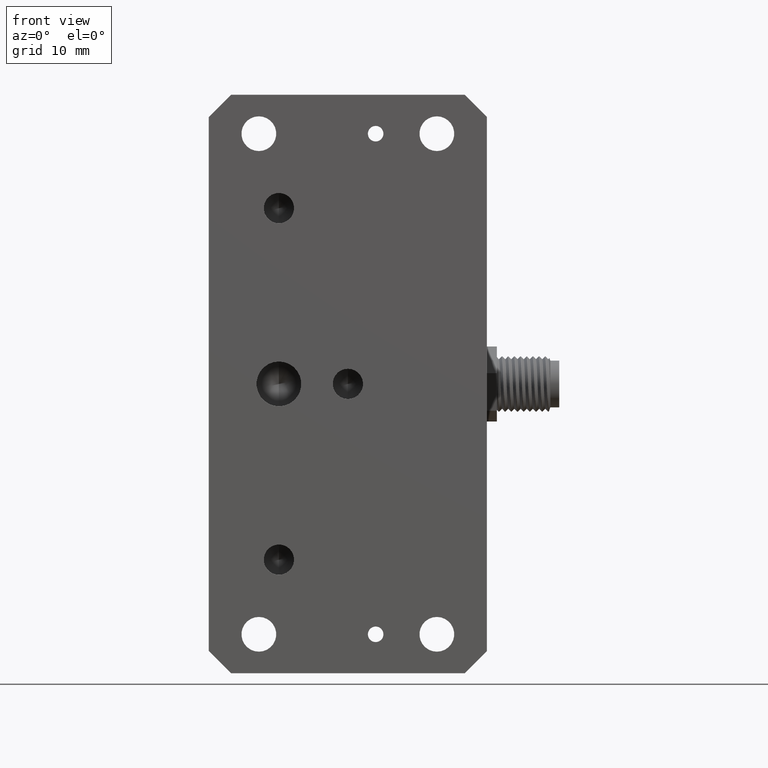
[diagram: clean part render]
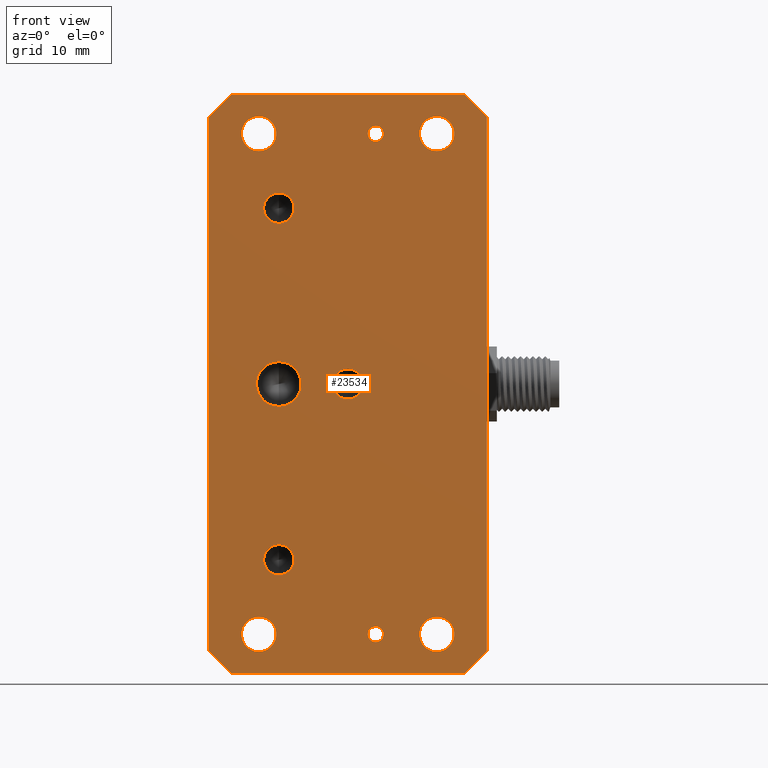
[diagram: same view with one face highlighted and labeled with its STEP entity id]
A machine part, front view. The second image highlights one B-rep face of the part: STEP entity #23534.
In plain terms, the highlighted planar face has unit normal (0, 1, 0).
Its self-contained STEP definition (entity closure, byte-faithful):
#5880 = DIRECTION ( 'NONE',  ( 0.0000000000000000000, 0.0000000000000000000, -1.000000000000000000 ) ) ;
#6147 = DIRECTION ( 'NONE',  ( -0.0000000000000000000, -1.000000000000000000, -0.0000000000000000000 ) ) ;
#6152 = AXIS2_PLACEMENT_3D ( 'NONE', #6153, #6147, #5880 ) ;
#6153 = CARTESIAN_POINT ( 'NONE',  ( -7.874000000000000600, -1.866361721900564100E-017, -6.938893903907228400E-015 ) ) ;
#6162 = CIRCLE ( 'NONE', #6152, 2.552699999999998000 ) ;
#6302 = CARTESIAN_POINT ( 'NONE',  ( -7.874000000000000600, -1.866361721900564100E-017, 2.552699999999990900 ) ) ;
#6333 = CARTESIAN_POINT ( 'NONE',  ( -7.874000000000000600, -1.343780439768404900E-015, -18.33880000000001700 ) ) ;
#6337 = CARTESIAN_POINT ( 'NONE',  ( -7.874000000000000600, -1.343780439768404900E-015, 21.79319999999998500 ) ) ;
#6343 = CARTESIAN_POINT ( 'NONE',  ( -7.874000000000000600, -1.343780439768404900E-015, 18.33880000000000300 ) ) ;
#6366 = CARTESIAN_POINT ( 'NONE',  ( -7.874000000000000600, -1.866361721900564100E-017, -2.552700000000005100 ) ) ;
#6397 = DIRECTION ( 'NONE',  ( 0.0000000000000000000, 0.0000000000000000000, 1.000000000000000000 ) ) ;
#6673 = AXIS2_PLACEMENT_3D ( 'NONE', #6711, #6777, #6776 ) ;
#6675 = CIRCLE ( 'NONE', #6785, 1.727199999999991200 ) ;
#6711 = CARTESIAN_POINT ( 'NONE',  ( -7.874000000000000600, -1.343780439768404900E-015, -20.06600000000000600 ) ) ;
#6712 = CARTESIAN_POINT ( 'NONE',  ( -7.874000000000000600, -1.343780439768404900E-015, -21.79319999999999900 ) ) ;
#6714 = CIRCLE ( 'NONE', #6673, 1.727199999999991200 ) ;
#6755 = DIRECTION ( 'NONE',  ( 0.0000000000000000000, 0.0000000000000000000, -1.000000000000000000 ) ) ;
#6757 = DIRECTION ( 'NONE',  ( -0.0000000000000000000, -1.000000000000000000, -0.0000000000000000000 ) ) ;
#6774 = CARTESIAN_POINT ( 'NONE',  ( -7.874000000000000600, -1.343780439768404900E-015, 20.06599999999999200 ) ) ;
#6776 = DIRECTION ( 'NONE',  ( 0.0000000000000000000, 0.0000000000000000000, -1.000000000000000000 ) ) ;
#6777 = DIRECTION ( 'NONE',  ( -0.0000000000000000000, -1.000000000000000000, -0.0000000000000000000 ) ) ;
#6785 = AXIS2_PLACEMENT_3D ( 'NONE', #6774, #6757, #6755 ) ;
#6861 = CARTESIAN_POINT ( 'NONE',  ( 10.16000000000000000, 0.0000000000000000000, -26.59062499999999900 ) ) ;
#6976 = DIRECTION ( 'NONE',  ( 0.0000000000000000000, 0.0000000000000000000, -1.000000000000000000 ) ) ;
#6977 = DIRECTION ( 'NONE',  ( -0.0000000000000000000, -1.000000000000000000, -0.0000000000000000000 ) ) ;
#6978 = CARTESIAN_POINT ( 'NONE',  ( 0.0000000000000000000, 1.385727811794799700E-016, 0.0000000000000000000 ) ) ;
#6980 = AXIS2_PLACEMENT_3D ( 'NONE', #6978, #6977, #6976 ) ;
#6992 = CARTESIAN_POINT ( 'NONE',  ( 0.0000000000000000000, 1.385727811794799700E-016, -1.727199999999999400 ) ) ;
#6998 = CIRCLE ( 'NONE', #6980, 1.727199999999999400 ) ;
#7023 = CARTESIAN_POINT ( 'NONE',  ( 2.115209951487307500E-016, 1.385727811794799700E-016, 1.727199999999999400 ) ) ;
#7782 = CIRCLE ( 'NONE', #7888, 1.984375000000003600 ) ;
#7843 = DIRECTION ( 'NONE',  ( 0.0000000000000000000, 1.000000000000000000, 0.0000000000000000000 ) ) ;
#7845 = CARTESIAN_POINT ( 'NONE',  ( 3.175000000000000700, 0.0000000000000000000, -28.57500000000000300 ) ) ;
#7848 = AXIS2_PLACEMENT_3D ( 'NONE', #7845, #7843, #7890 ) ;
#7850 = CIRCLE ( 'NONE', #7848, 0.8889999999999940200 ) ;
#7886 = DIRECTION ( 'NONE',  ( 0.0000000000000000000, 1.000000000000000000, 0.0000000000000000000 ) ) ;
#7887 = CARTESIAN_POINT ( 'NONE',  ( 10.16000000000000000, 0.0000000000000000000, -28.57500000000000300 ) ) ;
#7888 = AXIS2_PLACEMENT_3D ( 'NONE', #7887, #7886, #6397 ) ;
#7890 = DIRECTION ( 'NONE',  ( 0.0000000000000000000, 0.0000000000000000000, 1.000000000000000000 ) ) ;
#8275 = CARTESIAN_POINT ( 'NONE',  ( 3.175000000000007800, 0.0000000000000000000, 29.46399999999999900 ) ) ;
#8283 = CARTESIAN_POINT ( 'NONE',  ( 3.175000000000007800, 0.0000000000000000000, 27.68600000000001100 ) ) ;
#8709 = CARTESIAN_POINT ( 'NONE',  ( 10.16000000000000000, 0.0000000000000000000, -30.55937500000000600 ) ) ;
#8837 = CARTESIAN_POINT ( 'NONE',  ( 3.175000000000000700, 0.0000000000000000000, -27.68600000000001100 ) ) ;
#8863 = CIRCLE ( 'NONE', #8887, 0.8889999999999940200 ) ;
#8881 = DIRECTION ( 'NONE',  ( 0.0000000000000000000, 0.0000000000000000000, 1.000000000000000000 ) ) ;
#8883 = DIRECTION ( 'NONE',  ( 0.0000000000000000000, 1.000000000000000000, 0.0000000000000000000 ) ) ;
#8884 = CARTESIAN_POINT ( 'NONE',  ( 3.175000000000007800, 0.0000000000000000000, 28.57500000000000300 ) ) ;
#8887 = AXIS2_PLACEMENT_3D ( 'NONE', #8884, #8883, #8881 ) ;
#8894 = CARTESIAN_POINT ( 'NONE',  ( 10.16000000000000000, 0.0000000000000000000, 26.59062499999999900 ) ) ;
#8922 = CARTESIAN_POINT ( 'NONE',  ( 3.175000000000000700, 0.0000000000000000000, -29.46399999999999900 ) ) ;
#8970 = CARTESIAN_POINT ( 'NONE',  ( 10.16000000000000000, 0.0000000000000000000, 28.57500000000000300 ) ) ;
#8973 = CIRCLE ( 'NONE', #8987, 1.984375000000003600 ) ;
#8987 = AXIS2_PLACEMENT_3D ( 'NONE', #8970, #9085, #9067 ) ;
#9063 = DIRECTION ( 'NONE',  ( -0.0000000000000000000, -1.000000000000000000, -0.0000000000000000000 ) ) ;
#9065 = CIRCLE ( 'NONE', #9212, 1.984375000000003600 ) ;
#9067 = DIRECTION ( 'NONE',  ( 0.0000000000000000000, 0.0000000000000000000, 1.000000000000000000 ) ) ;
#9085 = DIRECTION ( 'NONE',  ( -0.0000000000000000000, -1.000000000000000000, -0.0000000000000000000 ) ) ;
#9176 = DIRECTION ( 'NONE',  ( 0.0000000000000000000, 0.0000000000000000000, 1.000000000000000000 ) ) ;
#9177 = DIRECTION ( 'NONE',  ( 0.0000000000000000000, 1.000000000000000000, 0.0000000000000000000 ) ) ;
#9180 = CARTESIAN_POINT ( 'NONE',  ( -10.16000000000000000, 0.0000000000000000000, -28.57500000000000300 ) ) ;
#9185 = CARTESIAN_POINT ( 'NONE',  ( 15.87500000000000000, 0.0000000000000000000, -33.02000000000000300 ) ) ;
#9194 = CARTESIAN_POINT ( 'NONE',  ( -10.16000000000000000, 0.0000000000000000000, -26.59062499999999900 ) ) ;
#9212 = AXIS2_PLACEMENT_3D ( 'NONE', #9180, #9177, #9176 ) ;
#9214 = DIRECTION ( 'NONE',  ( 0.0000000000000000000, 0.0000000000000000000, 1.000000000000000000 ) ) ;
#9226 = CARTESIAN_POINT ( 'NONE',  ( 10.16000000000000000, 0.0000000000000000000, 30.55937500000000600 ) ) ;
#9240 = CARTESIAN_POINT ( 'NONE',  ( -10.16000000000000000, 0.0000000000000000000, 28.57500000000000300 ) ) ;
#9244 = AXIS2_PLACEMENT_3D ( 'NONE', #9240, #9063, #9214 ) ;
#9247 = CIRCLE ( 'NONE', #9244, 1.984375000000003600 ) ;
#9260 = DIRECTION ( 'NONE',  ( -5.253553833969736500E-017, -0.0000000000000000000, -1.000000000000000000 ) ) ;
#9261 = VECTOR ( 'NONE', #9260, 1000.000000000000000 ) ;
#9264 = CARTESIAN_POINT ( 'NONE',  ( -10.16000000000000000, 0.0000000000000000000, -30.55937500000000600 ) ) ;
#9266 = LINE ( 'NONE', #9185, #9261 ) ;
#9387 = CARTESIAN_POINT ( 'NONE',  ( -10.16000000000000000, 0.0000000000000000000, 26.59062499999999900 ) ) ;
#9392 = CARTESIAN_POINT ( 'NONE',  ( -10.16000000000000000, 0.0000000000000000000, 30.55937500000000600 ) ) ;
#9477 = CARTESIAN_POINT ( 'NONE',  ( 15.87500000000000400, 0.0000000000000000000, 30.48000000000000000 ) ) ;
#9479 = LINE ( 'NONE', #9477, #9749 ) ;
#9534 = FACE_BOUND ( 'NONE', #23580, .T. ) ;
#9535 = FACE_OUTER_BOUND ( 'NONE', #23577, .T. ) ;
#9537 = PLANE ( 'NONE',  #9605 ) ;
#9567 = DIRECTION ( 'NONE',  ( -0.0000000000000000000, -1.000000000000000000, -0.0000000000000000000 ) ) ;
#9570 = FACE_BOUND ( 'NONE', #23614, .T. ) ;
#9571 = FACE_BOUND ( 'NONE', #23630, .T. ) ;
#9572 = FACE_BOUND ( 'NONE', #23576, .T. ) ;
#9573 = FACE_BOUND ( 'NONE', #23597, .T. ) ;
#9574 = FACE_BOUND ( 'NONE', #23593, .T. ) ;
#9575 = FACE_BOUND ( 'NONE', #23594, .T. ) ;
#9576 = FACE_BOUND ( 'NONE', #23537, .T. ) ;
#9578 = FACE_BOUND ( 'NONE', #23541, .T. ) ;
#9582 = FACE_BOUND ( 'NONE', #23535, .T. ) ;
#9592 = DIRECTION ( 'NONE',  ( 0.0000000000000000000, 0.0000000000000000000, -1.000000000000000000 ) ) ;
#9593 = AXIS2_PLACEMENT_3D ( 'NONE', #9606, #9567, #9592 ) ;
#9594 = CIRCLE ( 'NONE', #9593, 1.727199999999991200 ) ;
#9598 = DIRECTION ( 'NONE',  ( 0.0000000000000000000, 0.0000000000000000000, -1.000000000000000000 ) ) ;
#9599 = DIRECTION ( 'NONE',  ( -0.0000000000000000000, -1.000000000000000000, -0.0000000000000000000 ) ) ;
#9600 = CARTESIAN_POINT ( 'NONE',  ( -7.874000000000000600, -1.866361721900564100E-017, -6.938893903907228400E-015 ) ) ;
#9601 = AXIS2_PLACEMENT_3D ( 'NONE', #9600, #9599, #9598 ) ;
#9602 = DIRECTION ( 'NONE',  ( 0.0000000000000000000, -0.0000000000000000000, 1.000000000000000000 ) ) ;
#9603 = DIRECTION ( 'NONE',  ( 0.0000000000000000000, 1.000000000000000000, 0.0000000000000000000 ) ) ;
#9604 = CARTESIAN_POINT ( 'NONE',  ( -15.87500000000000000, 0.0000000000000000000, 33.02000000000000300 ) ) ;
#9605 = AXIS2_PLACEMENT_3D ( 'NONE', #9604, #9603, #9602 ) ;
#9606 = CARTESIAN_POINT ( 'NONE',  ( -7.874000000000000600, -1.343780439768404900E-015, 20.06599999999999200 ) ) ;
#9608 = CIRCLE ( 'NONE', #9601, 2.552699999999998000 ) ;
#9625 = CARTESIAN_POINT ( 'NONE',  ( -15.87500000000000000, 0.0000000000000000000, 30.47999999999998600 ) ) ;
#9643 = DIRECTION ( 'NONE',  ( -0.0000000000000000000, -1.000000000000000000, -0.0000000000000000000 ) ) ;
#9644 = DIRECTION ( 'NONE',  ( 0.0000000000000000000, 0.0000000000000000000, 1.000000000000000000 ) ) ;
#9645 = DIRECTION ( 'NONE',  ( 0.0000000000000000000, 1.000000000000000000, 0.0000000000000000000 ) ) ;
#9646 = CARTESIAN_POINT ( 'NONE',  ( -10.16000000000000000, 0.0000000000000000000, -28.57500000000000300 ) ) ;
#9647 = AXIS2_PLACEMENT_3D ( 'NONE', #9646, #9645, #9644 ) ;
#9648 = CIRCLE ( 'NONE', #9703, 1.984375000000003600 ) ;
#9649 = CIRCLE ( 'NONE', #9647, 1.984375000000003600 ) ;
#9650 = DIRECTION ( 'NONE',  ( -1.000000000000000000, -0.0000000000000000000, -0.0000000000000000000 ) ) ;
#9651 = VECTOR ( 'NONE', #9650, 1000.000000000000000 ) ;
#9652 = CARTESIAN_POINT ( 'NONE',  ( -15.87500000000000000, 0.0000000000000000000, -33.02000000000000300 ) ) ;
#9653 = LINE ( 'NONE', #9652, #9651 ) ;
#9654 = CARTESIAN_POINT ( 'NONE',  ( 15.87500000000000000, 0.0000000000000000000, -30.47999999999998600 ) ) ;
#9655 = DIRECTION ( 'NONE',  ( 0.7071067811865484600, -0.0000000000000000000, -0.7071067811865465700 ) ) ;
#9656 = VECTOR ( 'NONE', #9655, 1000.000000000000000 ) ;
#9657 = CARTESIAN_POINT ( 'NONE',  ( -15.87500000000000000, 0.0000000000000000000, -30.48000000000000000 ) ) ;
#9658 = CIRCLE ( 'NONE', #9702, 1.984375000000003600 ) ;
#9659 = CARTESIAN_POINT ( 'NONE',  ( 10.16000000000000000, 0.0000000000000000000, 28.57500000000000300 ) ) ;
#9660 = LINE ( 'NONE', #9657, #9656 ) ;
#9661 = CARTESIAN_POINT ( 'NONE',  ( -13.33499999999999200, 0.0000000000000000000, -33.02000000000000300 ) ) ;
#9662 = CIRCLE ( 'NONE', #9679, 0.8889999999999940200 ) ;
#9663 = CARTESIAN_POINT ( 'NONE',  ( 15.87500000000000000, 0.0000000000000000000, 30.48000000000001100 ) ) ;
#9668 = CARTESIAN_POINT ( 'NONE',  ( 13.33499999999998500, 0.0000000000000000000, -33.02000000000001000 ) ) ;
#9669 = CARTESIAN_POINT ( 'NONE',  ( -15.87500000000000000, 0.0000000000000000000, -30.48000000000000000 ) ) ;
#9676 = CIRCLE ( 'NONE', #9695, 1.727199999999999400 ) ;
#9677 = DIRECTION ( 'NONE',  ( 0.0000000000000000000, 0.0000000000000000000, 1.000000000000000000 ) ) ;
#9678 = DIRECTION ( 'NONE',  ( 0.0000000000000000000, 1.000000000000000000, 0.0000000000000000000 ) ) ;
#9679 = AXIS2_PLACEMENT_3D ( 'NONE', #9684, #9678, #9677 ) ;
#9681 = DIRECTION ( 'NONE',  ( 0.0000000000000000000, 0.0000000000000000000, 1.000000000000000000 ) ) ;
#9682 = DIRECTION ( 'NONE',  ( 0.0000000000000000000, 1.000000000000000000, 0.0000000000000000000 ) ) ;
#9683 = CARTESIAN_POINT ( 'NONE',  ( 3.175000000000007800, 0.0000000000000000000, 28.57500000000000300 ) ) ;
#9684 = CARTESIAN_POINT ( 'NONE',  ( 3.175000000000000700, 0.0000000000000000000, -28.57500000000000300 ) ) ;
#9685 = DIRECTION ( 'NONE',  ( 0.0000000000000000000, 0.0000000000000000000, -1.000000000000000000 ) ) ;
#9686 = DIRECTION ( 'NONE',  ( -0.0000000000000000000, -1.000000000000000000, -0.0000000000000000000 ) ) ;
#9687 = AXIS2_PLACEMENT_3D ( 'NONE', #9683, #9682, #9681 ) ;
#9688 = CIRCLE ( 'NONE', #9687, 0.8889999999999940200 ) ;
#9690 = DIRECTION ( 'NONE',  ( 0.0000000000000000000, 0.0000000000000000000, -1.000000000000000000 ) ) ;
#9691 = DIRECTION ( 'NONE',  ( -0.0000000000000000000, -1.000000000000000000, -0.0000000000000000000 ) ) ;
#9692 = CARTESIAN_POINT ( 'NONE',  ( -7.874000000000000600, -1.343780439768404900E-015, -20.06600000000000600 ) ) ;
#9693 = AXIS2_PLACEMENT_3D ( 'NONE', #9692, #9691, #9690 ) ;
#9695 = AXIS2_PLACEMENT_3D ( 'NONE', #9700, #9686, #9685 ) ;
#9696 = DIRECTION ( 'NONE',  ( 0.0000000000000000000, 0.0000000000000000000, 1.000000000000000000 ) ) ;
#9697 = DIRECTION ( 'NONE',  ( -0.0000000000000000000, -1.000000000000000000, -0.0000000000000000000 ) ) ;
#9698 = CARTESIAN_POINT ( 'NONE',  ( -10.16000000000000000, 0.0000000000000000000, 28.57500000000000300 ) ) ;
#9699 = CIRCLE ( 'NONE', #9693, 1.727199999999991200 ) ;
#9700 = CARTESIAN_POINT ( 'NONE',  ( 0.0000000000000000000, 1.385727811794799700E-016, 0.0000000000000000000 ) ) ;
#9701 = DIRECTION ( 'NONE',  ( 0.0000000000000000000, 0.0000000000000000000, 1.000000000000000000 ) ) ;
#9702 = AXIS2_PLACEMENT_3D ( 'NONE', #9659, #9643, #9701 ) ;
#9703 = AXIS2_PLACEMENT_3D ( 'NONE', #9698, #9697, #9696 ) ;
#9704 = CARTESIAN_POINT ( 'NONE',  ( 13.33499999999999600, 0.0000000000000000000, 33.02000000000000300 ) ) ;
#9705 = DIRECTION ( 'NONE',  ( 0.0000000000000000000, 0.0000000000000000000, 1.000000000000000000 ) ) ;
#9706 = DIRECTION ( 'NONE',  ( 0.0000000000000000000, 1.000000000000000000, 0.0000000000000000000 ) ) ;
#9707 = CARTESIAN_POINT ( 'NONE',  ( 10.16000000000000000, 0.0000000000000000000, -28.57500000000000300 ) ) ;
#9712 = DIRECTION ( 'NONE',  ( -0.7071067811865455700, 0.0000000000000000000, -0.7071067811865494600 ) ) ;
#9713 = VECTOR ( 'NONE', #9712, 1000.000000000000200 ) ;
#9714 = CARTESIAN_POINT ( 'NONE',  ( -13.33499999999999900, 0.0000000000000000000, 33.02000000000000300 ) ) ;
#9715 = LINE ( 'NONE', #9714, #9713 ) ;
#9721 = DIRECTION ( 'NONE',  ( -0.7071067811865484600, -0.0000000000000000000, 0.7071067811865465700 ) ) ;
#9727 = AXIS2_PLACEMENT_3D ( 'NONE', #9707, #9706, #9705 ) ;
#9728 = CIRCLE ( 'NONE', #9727, 1.984375000000003600 ) ;
#9739 = DIRECTION ( 'NONE',  ( 0.7071067811865455700, -0.0000000000000000000, 0.7071067811865494600 ) ) ;
#9740 = VECTOR ( 'NONE', #9739, 1000.000000000000200 ) ;
#9741 = CARTESIAN_POINT ( 'NONE',  ( 13.33499999999999900, 0.0000000000000000000, -33.02000000000000300 ) ) ;
#9742 = LINE ( 'NONE', #9741, #9740 ) ;
#9743 = CARTESIAN_POINT ( 'NONE',  ( -13.33499999999999900, 0.0000000000000000000, 33.02000000000000300 ) ) ;
#9749 = VECTOR ( 'NONE', #9721, 1000.000000000000000 ) ;
#9799 = DIRECTION ( 'NONE',  ( 1.000000000000000000, 0.0000000000000000000, 0.0000000000000000000 ) ) ;
#9801 = VECTOR ( 'NONE', #9799, 1000.000000000000000 ) ;
#9802 = CARTESIAN_POINT ( 'NONE',  ( -15.87500000000000000, 0.0000000000000000000, 33.02000000000000300 ) ) ;
#9804 = LINE ( 'NONE', #9802, #9801 ) ;
#9843 = DIRECTION ( 'NONE',  ( 0.0000000000000000000, 0.0000000000000000000, 1.000000000000000000 ) ) ;
#9844 = VECTOR ( 'NONE', #9843, 1000.000000000000000 ) ;
#9846 = CARTESIAN_POINT ( 'NONE',  ( -15.87500000000000000, 0.0000000000000000000, -33.02000000000000300 ) ) ;
#9847 = LINE ( 'NONE', #9846, #9844 ) ;
#23081 = VERTEX_POINT ( 'NONE', #6302 ) ;
#23108 = VERTEX_POINT ( 'NONE', #6343 ) ;
#23110 = VERTEX_POINT ( 'NONE', #6337 ) ;
#23112 = VERTEX_POINT ( 'NONE', #6333 ) ;
#23118 = VERTEX_POINT ( 'NONE', #6366 ) ;
#23121 = EDGE_CURVE ( 'NONE', #23081, #23118, #6162, .T. ) ;
#23158 = VERTEX_POINT ( 'NONE', #6712 ) ;
#23159 = EDGE_CURVE ( 'NONE', #23112, #23158, #6714, .T. ) ;
#23163 = EDGE_CURVE ( 'NONE', #23110, #23108, #6675, .T. ) ;
#23197 = VERTEX_POINT ( 'NONE', #7023 ) ;
#23199 = VERTEX_POINT ( 'NONE', #6992 ) ;
#23200 = EDGE_CURVE ( 'NONE', #23197, #23199, #6998, .T. ) ;
#23361 = VERTEX_POINT ( 'NONE', #8283 ) ;
#23362 = VERTEX_POINT ( 'NONE', #8275 ) ;
#23386 = EDGE_CURVE ( 'NONE', #23411, #23412, #7850, .T. ) ;
#23389 = EDGE_CURVE ( 'NONE', #23390, #23455, #7782, .T. ) ;
#23390 = VERTEX_POINT ( 'NONE', #8709 ) ;
#23411 = VERTEX_POINT ( 'NONE', #8922 ) ;
#23412 = VERTEX_POINT ( 'NONE', #8837 ) ;
#23419 = EDGE_CURVE ( 'NONE', #23361, #23362, #8863, .T. ) ;
#23424 = VERTEX_POINT ( 'NONE', #8894 ) ;
#23431 = EDGE_CURVE ( 'NONE', #23439, #23424, #8973, .T. ) ;
#23437 = EDGE_CURVE ( 'NONE', #23484, #23485, #9247, .T. ) ;
#23439 = VERTEX_POINT ( 'NONE', #9226 ) ;
#23440 = EDGE_CURVE ( 'NONE', #23454, #23442, #9065, .T. ) ;
#23442 = VERTEX_POINT ( 'NONE', #9194 ) ;
#23454 = VERTEX_POINT ( 'NONE', #9264 ) ;
#23455 = VERTEX_POINT ( 'NONE', #6861 ) ;
#23484 = VERTEX_POINT ( 'NONE', #9392 ) ;
#23485 = VERTEX_POINT ( 'NONE', #9387 ) ;
#23498 = ORIENTED_EDGE ( 'NONE', *, *, #23540, .F. ) ;
#23500 = ORIENTED_EDGE ( 'NONE', *, *, #23538, .F. ) ;
#23534 = ADVANCED_FACE ( 'NONE', ( #9582, #9578, #9576, #9575, #9574, #9573, #9572, #9534, #9571, #9535, #9570 ), #9537, .F. ) ;
#23535 = EDGE_LOOP ( 'NONE', ( #23500, #23536 ) ) ;
#23536 = ORIENTED_EDGE ( 'NONE', *, *, #23121, .F. ) ;
#23537 = EDGE_LOOP ( 'NONE', ( #23539, #23590 ) ) ;
#23538 = EDGE_CURVE ( 'NONE', #23118, #23081, #9608, .T. ) ;
#23539 = ORIENTED_EDGE ( 'NONE', *, *, #23591, .F. ) ;
#23540 = EDGE_CURVE ( 'NONE', #23108, #23110, #9594, .T. ) ;
#23541 = EDGE_LOOP ( 'NONE', ( #23498, #23542 ) ) ;
#23542 = ORIENTED_EDGE ( 'NONE', *, *, #23163, .F. ) ;
#23555 = VERTEX_POINT ( 'NONE', #9625 ) ;
#23567 = ORIENTED_EDGE ( 'NONE', *, *, #23632, .F. ) ;
#23568 = VERTEX_POINT ( 'NONE', #9663 ) ;
#23569 = VERTEX_POINT ( 'NONE', #9669 ) ;
#23570 = VERTEX_POINT ( 'NONE', #9668 ) ;
#23571 = EDGE_CURVE ( 'NONE', #23569, #23575, #9660, .T. ) ;
#23573 = ORIENTED_EDGE ( 'NONE', *, *, #23571, .T. ) ;
#23574 = EDGE_CURVE ( 'NONE', #23570, #23575, #9653, .T. ) ;
#23575 = VERTEX_POINT ( 'NONE', #9661 ) ;
#23576 = EDGE_LOOP ( 'NONE', ( #23583, #23582 ) ) ;
#23577 = EDGE_LOOP ( 'NONE', ( #23567, #23573, #23619, #23634, #23625, #23618, #23624, #23613 ) ) ;
#23578 = ORIENTED_EDGE ( 'NONE', *, *, #23600, .T. ) ;
#23579 = ORIENTED_EDGE ( 'NONE', *, *, #23386, .T. ) ;
#23580 = EDGE_LOOP ( 'NONE', ( #23588, #23584 ) ) ;
#23581 = EDGE_CURVE ( 'NONE', #23442, #23454, #9649, .T. ) ;
#23582 = ORIENTED_EDGE ( 'NONE', *, *, #23440, .T. ) ;
#23583 = ORIENTED_EDGE ( 'NONE', *, *, #23581, .T. ) ;
#23584 = ORIENTED_EDGE ( 'NONE', *, *, #23585, .F. ) ;
#23585 = EDGE_CURVE ( 'NONE', #23424, #23439, #9658, .T. ) ;
#23586 = VERTEX_POINT ( 'NONE', #9654 ) ;
#23587 = EDGE_CURVE ( 'NONE', #23485, #23484, #9648, .T. ) ;
#23588 = ORIENTED_EDGE ( 'NONE', *, *, #23431, .F. ) ;
#23589 = ORIENTED_EDGE ( 'NONE', *, *, #23592, .F. ) ;
#23590 = ORIENTED_EDGE ( 'NONE', *, *, #23159, .F. ) ;
#23591 = EDGE_CURVE ( 'NONE', #23158, #23112, #9699, .T. ) ;
#23592 = EDGE_CURVE ( 'NONE', #23199, #23197, #9676, .T. ) ;
#23593 = EDGE_LOOP ( 'NONE', ( #23598, #23595 ) ) ;
#23594 = EDGE_LOOP ( 'NONE', ( #23589, #23596 ) ) ;
#23595 = ORIENTED_EDGE ( 'NONE', *, *, #23419, .T. ) ;
#23596 = ORIENTED_EDGE ( 'NONE', *, *, #23200, .F. ) ;
#23597 = EDGE_LOOP ( 'NONE', ( #23578, #23579 ) ) ;
#23598 = ORIENTED_EDGE ( 'NONE', *, *, #23599, .T. ) ;
#23599 = EDGE_CURVE ( 'NONE', #23362, #23361, #9688, .T. ) ;
#23600 = EDGE_CURVE ( 'NONE', #23412, #23411, #9662, .T. ) ;
#23611 = EDGE_CURVE ( 'NONE', #23621, #23555, #9715, .T. ) ;
#23612 = EDGE_CURVE ( 'NONE', #23455, #23390, #9728, .T. ) ;
#23613 = ORIENTED_EDGE ( 'NONE', *, *, #23611, .T. ) ;
#23614 = EDGE_LOOP ( 'NONE', ( #23615, #23616 ) ) ;
#23615 = ORIENTED_EDGE ( 'NONE', *, *, #23612, .T. ) ;
#23616 = ORIENTED_EDGE ( 'NONE', *, *, #23389, .T. ) ;
#23618 = ORIENTED_EDGE ( 'NONE', *, *, #23626, .T. ) ;
#23619 = ORIENTED_EDGE ( 'NONE', *, *, #23574, .F. ) ;
#23620 = EDGE_CURVE ( 'NONE', #23570, #23586, #9742, .T. ) ;
#23621 = VERTEX_POINT ( 'NONE', #9743 ) ;
#23622 = VERTEX_POINT ( 'NONE', #9704 ) ;
#23623 = EDGE_CURVE ( 'NONE', #23568, #23586, #9266, .T. ) ;
#23624 = ORIENTED_EDGE ( 'NONE', *, *, #23627, .F. ) ;
#23625 = ORIENTED_EDGE ( 'NONE', *, *, #23623, .F. ) ;
#23626 = EDGE_CURVE ( 'NONE', #23568, #23622, #9479, .T. ) ;
#23627 = EDGE_CURVE ( 'NONE', #23621, #23622, #9804, .T. ) ;
#23629 = ORIENTED_EDGE ( 'NONE', *, *, #23587, .F. ) ;
#23630 = EDGE_LOOP ( 'NONE', ( #23631, #23629 ) ) ;
#23631 = ORIENTED_EDGE ( 'NONE', *, *, #23437, .F. ) ;
#23632 = EDGE_CURVE ( 'NONE', #23569, #23555, #9847, .T. ) ;
#23634 = ORIENTED_EDGE ( 'NONE', *, *, #23620, .T. ) ;